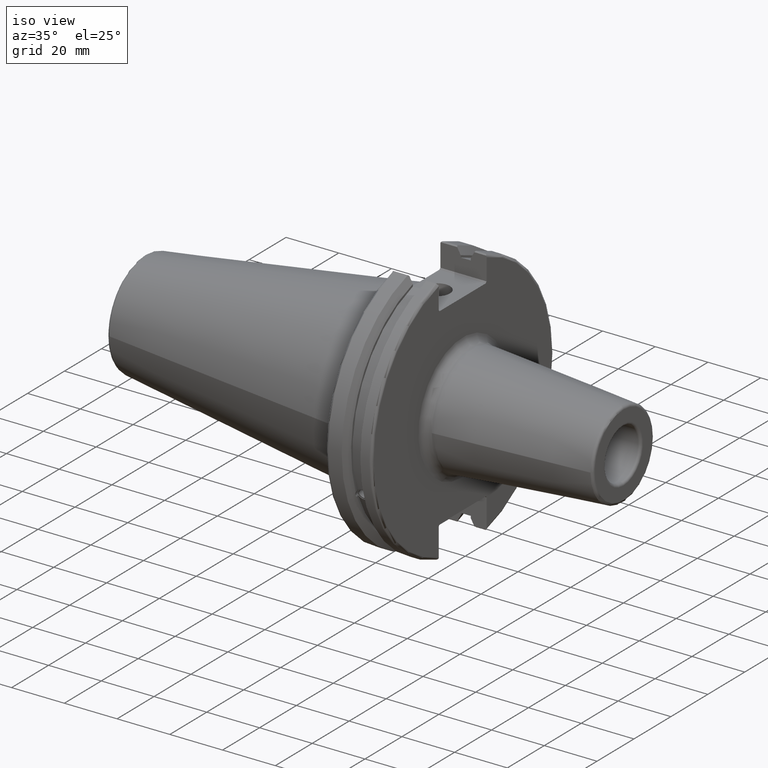
[diagram: clean part render]
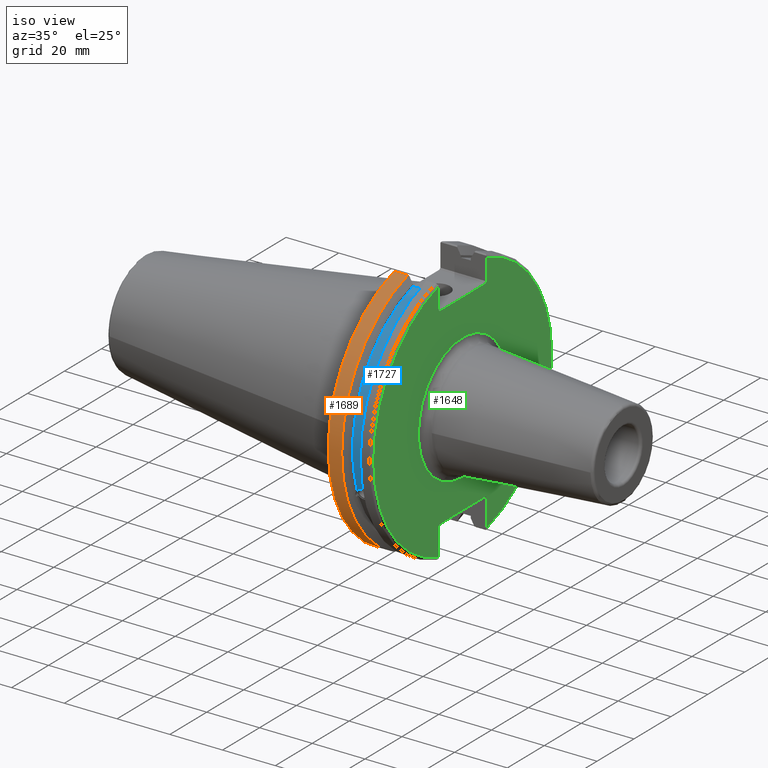
[diagram: same view with three faces highlighted in distinct colors, each labeled with its STEP entity id]
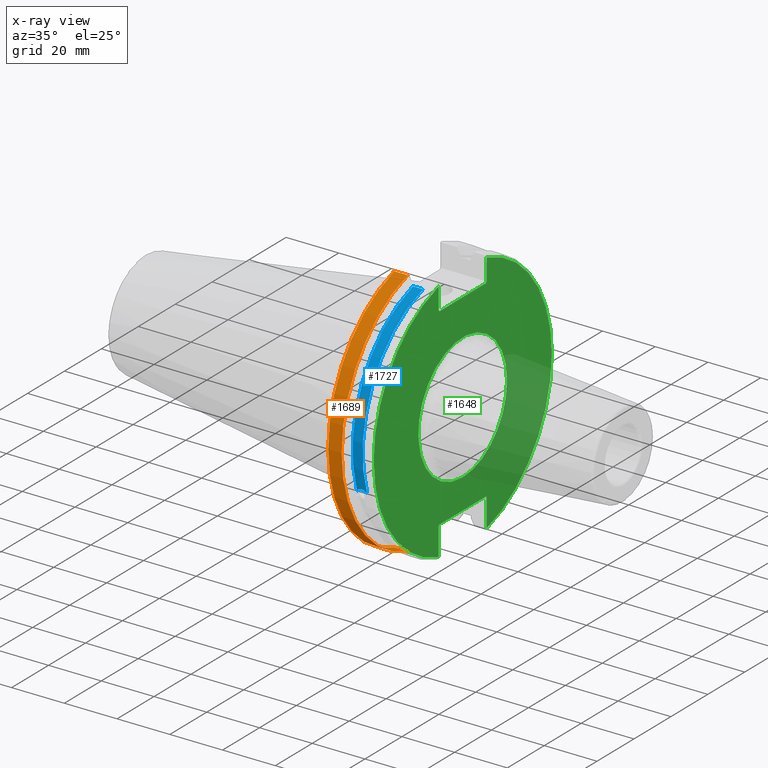
[diagram: x-ray of the same camera — body ghosted, the three highlighted faces saturated]
A machine part, iso view with three faces highlighted in distinct colors.
The next image is the same camera in x-ray (body ghosted, the three faces saturated) — at least one of them is partly hidden behind the body in this view.
Their STEP definitions:

[orange] entity #1689 — the highlighted cylindrical surface (partial cylindrical patch) has radius 49.2125 mm, axis along (1, 0, 0).
#150=LINE('',#3259,#244);
#151=LINE('',#3265,#245);
#244=VECTOR('',#2250,10.);
#245=VECTOR('',#2253,10.);
#295=CYLINDRICAL_SURFACE('',#1869,49.2125);
#408=FACE_OUTER_BOUND('',#508,.T.);
#508=EDGE_LOOP('',(#1416,#1417,#1418,#1419));
#622=CIRCLE('',#1866,49.2125);
#624=CIRCLE('',#1870,49.2125);
#799=VERTEX_POINT('',#3237);
#800=VERTEX_POINT('',#3246);
#801=VERTEX_POINT('',#3258);
#802=VERTEX_POINT('',#3264);
#1025=EDGE_CURVE('',#799,#800,#622,.T.);
#1028=EDGE_CURVE('',#800,#801,#150,.T.);
#1030=EDGE_CURVE('',#802,#799,#151,.T.);
#1031=EDGE_CURVE('',#801,#802,#624,.T.);
#1416=ORIENTED_EDGE('',*,*,#1025,.F.);
#1417=ORIENTED_EDGE('',*,*,#1030,.F.);
#1418=ORIENTED_EDGE('',*,*,#1031,.F.);
#1419=ORIENTED_EDGE('',*,*,#1028,.F.);
#1689=ADVANCED_FACE('',(#408),#295,.T.);
#1866=AXIS2_PLACEMENT_3D('',#3247,#2244,#2245);
#1869=AXIS2_PLACEMENT_3D('',#3263,#2251,#2252);
#1870=AXIS2_PLACEMENT_3D('',#3266,#2254,#2255);
#2244=DIRECTION('center_axis',(-1.,0.,0.));
#2245=DIRECTION('ref_axis',(0.,-1.,1.60812264967664E-16));
#2250=DIRECTION('',(1.,0.,0.));
#2251=DIRECTION('center_axis',(1.,0.,0.));
#2252=DIRECTION('ref_axis',(0.,-1.,1.22464679914735E-16));
#2253=DIRECTION('',(-1.,0.,0.));
#2254=DIRECTION('center_axis',(1.,0.,0.));
#2255=DIRECTION('ref_axis',(0.,0.,-1.));
#3237=CARTESIAN_POINT('',(2.5,-13.4317035994433,-47.3440544806494));
#3246=CARTESIAN_POINT('',(2.5,-13.4317035994433,47.3440544806494));
#3247=CARTESIAN_POINT('Origin',(2.5,0.,0.));
#3258=CARTESIAN_POINT('',(7.60799096595127,-13.4317035994433,47.3440544806494));
#3259=CARTESIAN_POINT('',(4.55399548297564,-13.4317035994433,47.3440544806494));
#3263=CARTESIAN_POINT('Origin',(4.55399548297564,0.,0.));
#3264=CARTESIAN_POINT('',(7.60799096595127,-13.4317035994433,-47.3440544806494));
#3265=CARTESIAN_POINT('',(4.55399548297564,-13.4317035994433,-47.3440544806494));
#3266=CARTESIAN_POINT('Origin',(7.60799096595127,0.,0.));

[blue] entity #1727 — the highlighted cylindrical surface (partial cylindrical patch) has radius 45.6435 mm, axis along (1, 0, 0).
#43=B_SPLINE_CURVE_WITH_KNOTS('',3,(#2691,#2692,#2693,#2694,#2695,#2696,
#2697,#2698,#2699,#2700,#2701,#2702,#2703,#2704),.UNSPECIFIED.,.F.,.F.,
(4,2,2,2,2,2,4),(0.40154831257669,0.474697095495631,0.553813286063443,0.632929476631254,
0.712045667199066,0.791161857766877,0.864310640685818),.UNSPECIFIED.);
#143=LINE('',#3215,#237);
#237=VECTOR('',#2233,10.);
#303=CYLINDRICAL_SURFACE('',#1944,45.6435);
#446=FACE_OUTER_BOUND('',#552,.T.);
#552=EDGE_LOOP('',(#1624,#1625,#1626,#1627));
#660=CIRCLE('',#1943,45.6435);
#661=CIRCLE('',#1945,45.6435);
#710=VERTEX_POINT('',#2688);
#711=VERTEX_POINT('',#2690);
#793=VERTEX_POINT('',#3212);
#794=VERTEX_POINT('',#3214);
#905=EDGE_CURVE('',#711,#710,#43,.T.);
#1015=EDGE_CURVE('',#794,#793,#143,.T.);
#1106=EDGE_CURVE('',#793,#711,#660,.T.);
#1107=EDGE_CURVE('',#794,#710,#661,.T.);
#1624=ORIENTED_EDGE('',*,*,#905,.T.);
#1625=ORIENTED_EDGE('',*,*,#1107,.F.);
#1626=ORIENTED_EDGE('',*,*,#1015,.T.);
#1627=ORIENTED_EDGE('',*,*,#1106,.T.);
#1727=ADVANCED_FACE('',(#446),#303,.T.);
#1943=AXIS2_PLACEMENT_3D('',#3450,#2431,#2432);
#1944=AXIS2_PLACEMENT_3D('',#3451,#2433,#2434);
#1945=AXIS2_PLACEMENT_3D('',#3452,#2435,#2436);
#2233=DIRECTION('',(-1.,0.,0.));
#2431=DIRECTION('center_axis',(1.,0.,0.));
#2432=DIRECTION('ref_axis',(0.,0.,-1.));
#2433=DIRECTION('center_axis',(1.,0.,0.));
#2434=DIRECTION('ref_axis',(0.,-0.888619069115281,0.458645996390125));
#2435=DIRECTION('center_axis',(1.,0.,0.));
#2436=DIRECTION('ref_axis',(0.,0.,-1.));
#2688=CARTESIAN_POINT('',(13.0491,-43.1779814500336,-14.7983448449669));
#2690=CARTESIAN_POINT('',(9.2191,-43.1779814500336,-14.7983448449669));
#2691=CARTESIAN_POINT('Ctrl Pts',(9.2191,-43.1779814500335,-14.7983448449669));
#2692=CARTESIAN_POINT('Ctrl Pts',(9.32532177598176,-43.2545173750974,-14.5750315766731));
#2693=CARTESIAN_POINT('Ctrl Pts',(9.47680807557665,-43.3223492818373,-14.3712521044637));
#2694=CARTESIAN_POINT('Ctrl Pts',(9.83560503400179,-43.4340904392251,-14.0300988117073));
#2695=CARTESIAN_POINT('Ctrl Pts',(10.0717203280543,-43.4832903960863,-13.8760243976176));
#2696=CARTESIAN_POINT('Ctrl Pts',(10.5891059167872,-43.54802519266,-13.6715068146718));
#2697=CARTESIAN_POINT('Ctrl Pts',(10.870379364774,-43.5636826100883,-13.6211104428929));
#2698=CARTESIAN_POINT('Ctrl Pts',(11.397820635226,-43.5636826100883,-13.6211104428929));
#2699=CARTESIAN_POINT('Ctrl Pts',(11.6790940832128,-43.54802519266,-13.6715068146718));
#2700=CARTESIAN_POINT('Ctrl Pts',(12.1964796719457,-43.4832903960863,-13.8760243976176));
#2701=CARTESIAN_POINT('Ctrl Pts',(12.4325949659982,-43.4340904392251,-14.0300988117073));
#2702=CARTESIAN_POINT('Ctrl Pts',(12.7913919244233,-43.3223492818373,-14.3712521044637));
#2703=CARTESIAN_POINT('Ctrl Pts',(12.9428782240182,-43.2545173750974,-14.5750315766731));
#2704=CARTESIAN_POINT('Ctrl Pts',(13.0491,-43.1779814500335,-14.7983448449669));
#3212=CARTESIAN_POINT('',(9.2191,-12.95,43.7678716897452));
#3214=CARTESIAN_POINT('',(13.0491,-12.95,43.7678716897452));
#3215=CARTESIAN_POINT('',(11.1341,-12.95,43.7678716897452));
#3450=CARTESIAN_POINT('Origin',(9.2191,0.,0.));
#3451=CARTESIAN_POINT('Origin',(11.1341,0.,0.));
#3452=CARTESIAN_POINT('Origin',(13.0491,0.,0.));

[green] entity #1648 — the highlighted planar face has unit normal (1, 0, 0).
#92=LINE('',#2490,#186);
#93=LINE('',#2492,#187);
#94=LINE('',#2494,#188);
#95=LINE('',#2496,#189);
#96=LINE('',#2498,#190);
#97=LINE('',#2502,#191);
#98=LINE('',#2504,#192);
#99=LINE('',#2506,#193);
#100=LINE('',#2508,#194);
#101=LINE('',#2509,#195);
#186=VECTOR('',#2008,10.);
#187=VECTOR('',#2009,10.);
#188=VECTOR('',#2010,10.);
#189=VECTOR('',#2011,10.);
#190=VECTOR('',#2012,10.);
#191=VECTOR('',#2015,10.);
#192=VECTOR('',#2016,10.);
#193=VECTOR('',#2017,10.);
#194=VECTOR('',#2018,10.);
#195=VECTOR('',#2019,10.);
#305=FACE_BOUND('',#457,.T.);
#323=PLANE('',#1775);
#367=FACE_OUTER_BOUND('',#456,.T.);
#456=EDGE_LOOP('',(#1149,#1150,#1151,#1152,#1153,#1154,#1155,#1156,#1157,
#1158,#1159,#1160));
#457=EDGE_LOOP('',(#1161,#1162));
#569=CIRCLE('',#1770,24.);
#570=CIRCLE('',#1771,24.);
#573=CIRCLE('',#1776,48.2125);
#574=CIRCLE('',#1777,48.2125);
#675=VERTEX_POINT('',#2475);
#676=VERTEX_POINT('',#2477);
#678=VERTEX_POINT('',#2486);
#679=VERTEX_POINT('',#2487);
#680=VERTEX_POINT('',#2489);
#681=VERTEX_POINT('',#2491);
#682=VERTEX_POINT('',#2493);
#683=VERTEX_POINT('',#2495);
#684=VERTEX_POINT('',#2497);
#685=VERTEX_POINT('',#2499);
#686=VERTEX_POINT('',#2501);
#687=VERTEX_POINT('',#2503);
#688=VERTEX_POINT('',#2505);
#689=VERTEX_POINT('',#2507);
#863=EDGE_CURVE('',#675,#676,#569,.T.);
#864=EDGE_CURVE('',#676,#675,#570,.T.);
#868=EDGE_CURVE('',#678,#679,#573,.T.);
#869=EDGE_CURVE('',#678,#680,#92,.T.);
#870=EDGE_CURVE('',#681,#680,#93,.T.);
#871=EDGE_CURVE('',#681,#682,#94,.T.);
#872=EDGE_CURVE('',#683,#682,#95,.T.);
#873=EDGE_CURVE('',#683,#684,#96,.T.);
#874=EDGE_CURVE('',#685,#684,#574,.T.);
#875=EDGE_CURVE('',#685,#686,#97,.T.);
#876=EDGE_CURVE('',#687,#686,#98,.T.);
#877=EDGE_CURVE('',#687,#688,#99,.T.);
#878=EDGE_CURVE('',#689,#688,#100,.T.);
#879=EDGE_CURVE('',#689,#679,#101,.T.);
#1149=ORIENTED_EDGE('',*,*,#868,.F.);
#1150=ORIENTED_EDGE('',*,*,#869,.T.);
#1151=ORIENTED_EDGE('',*,*,#870,.F.);
#1152=ORIENTED_EDGE('',*,*,#871,.T.);
#1153=ORIENTED_EDGE('',*,*,#872,.F.);
#1154=ORIENTED_EDGE('',*,*,#873,.T.);
#1155=ORIENTED_EDGE('',*,*,#874,.F.);
#1156=ORIENTED_EDGE('',*,*,#875,.T.);
#1157=ORIENTED_EDGE('',*,*,#876,.F.);
#1158=ORIENTED_EDGE('',*,*,#877,.T.);
#1159=ORIENTED_EDGE('',*,*,#878,.F.);
#1160=ORIENTED_EDGE('',*,*,#879,.T.);
#1161=ORIENTED_EDGE('',*,*,#864,.F.);
#1162=ORIENTED_EDGE('',*,*,#863,.F.);
#1648=ADVANCED_FACE('',(#367,#305),#323,.T.);
#1770=AXIS2_PLACEMENT_3D('',#2478,#1993,#1994);
#1771=AXIS2_PLACEMENT_3D('',#2479,#1995,#1996);
#1775=AXIS2_PLACEMENT_3D('',#2485,#2004,#2005);
#1776=AXIS2_PLACEMENT_3D('',#2488,#2006,#2007);
#1777=AXIS2_PLACEMENT_3D('',#2500,#2013,#2014);
#1993=DIRECTION('center_axis',(1.,0.,0.));
#1994=DIRECTION('ref_axis',(0.,-1.,-1.22464679914735E-16));
#1995=DIRECTION('center_axis',(1.,0.,0.));
#1996=DIRECTION('ref_axis',(0.,-1.,-1.22464679914735E-16));
#2004=DIRECTION('center_axis',(1.,0.,0.));
#2005=DIRECTION('ref_axis',(0.,0.,-1.));
#2006=DIRECTION('center_axis',(-1.,0.,0.));
#2007=DIRECTION('ref_axis',(0.,1.,-6.12323399573677E-17));
#2008=DIRECTION('',(0.,0.,-1.));
#2009=DIRECTION('',(0.,0.707106781186549,0.707106781186546));
#2010=DIRECTION('',(0.,-1.,0.));
#2011=DIRECTION('',(0.,0.707106781186549,-0.707106781186546));
#2012=DIRECTION('',(0.,0.,1.));
#2013=DIRECTION('center_axis',(-1.,0.,0.));
#2014=DIRECTION('ref_axis',(0.,-1.,1.60812264967664E-16));
#2015=DIRECTION('',(0.,0.,1.));
#2016=DIRECTION('',(0.,-0.707106781186549,-0.707106781186546));
#2017=DIRECTION('',(0.,1.,0.));
#2018=DIRECTION('',(0.,-0.707106781186548,0.707106781186548));
#2019=DIRECTION('',(0.,0.,-1.));
#2475=CARTESIAN_POINT('',(19.05,-6.88359928093764E-15,-24.));
#2477=CARTESIAN_POINT('',(19.05,24.,5.8783046359073E-15));
#2478=CARTESIAN_POINT('Origin',(19.05,-3.944446962984E-15,0.));
#2479=CARTESIAN_POINT('Origin',(19.05,-3.944446962984E-15,0.));
#2485=CARTESIAN_POINT('Origin',(19.05,0.,0.));
#2486=CARTESIAN_POINT('',(19.05,12.95,46.4407434937254));
#2487=CARTESIAN_POINT('',(19.05,12.95,-46.4407434937254));
#2488=CARTESIAN_POINT('Origin',(19.05,0.,0.));
#2489=CARTESIAN_POINT('',(19.05,12.95,38.219));
#2490=CARTESIAN_POINT('',(19.05,12.95,18.8595));
#2491=CARTESIAN_POINT('',(19.05,12.45,37.719));
#2492=CARTESIAN_POINT('',(19.05,0.0327499999999836,25.30175));
#2493=CARTESIAN_POINT('',(19.05,-12.45,37.719));
#2494=CARTESIAN_POINT('',(19.05,0.,37.719));
#2495=CARTESIAN_POINT('',(19.05,-12.95,38.219));
#2496=CARTESIAN_POINT('',(19.05,-0.0327499999999817,25.30175));
#2497=CARTESIAN_POINT('',(19.05,-12.95,46.4407434937254));
#2498=CARTESIAN_POINT('',(19.05,-12.95,18.8595));
#2499=CARTESIAN_POINT('',(19.05,-12.95,-46.4407434937254));
#2500=CARTESIAN_POINT('Origin',(19.05,0.,0.));
#2501=CARTESIAN_POINT('',(19.05,-12.95,-35.806));
#2502=CARTESIAN_POINT('',(19.05,-12.95,-17.653));
#2503=CARTESIAN_POINT('',(19.05,-12.45,-35.306));
#2504=CARTESIAN_POINT('',(19.05,-0.635999999999989,-23.492));
#2505=CARTESIAN_POINT('',(19.05,12.45,-35.306));
#2506=CARTESIAN_POINT('',(19.05,-3.88578058618805E-15,-35.306));
#2507=CARTESIAN_POINT('',(19.05,12.95,-35.806));
#2508=CARTESIAN_POINT('',(19.05,0.635999999999995,-23.492));
#2509=CARTESIAN_POINT('',(19.05,12.95,-17.653));